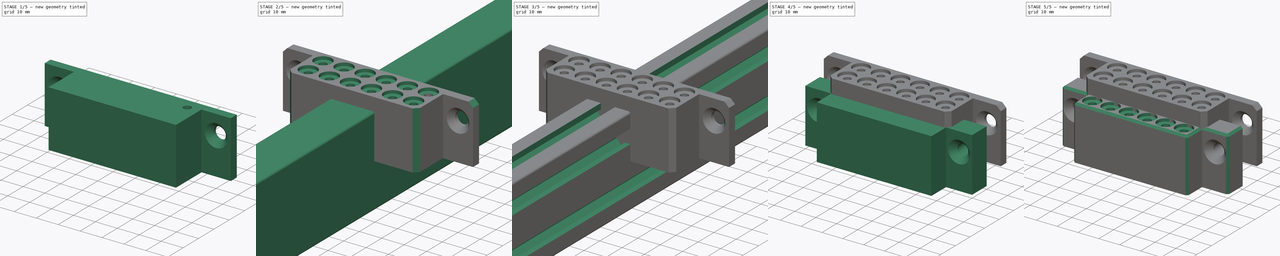
[diagram: build sequence overview — one tinted view per stage of 5, left to right]
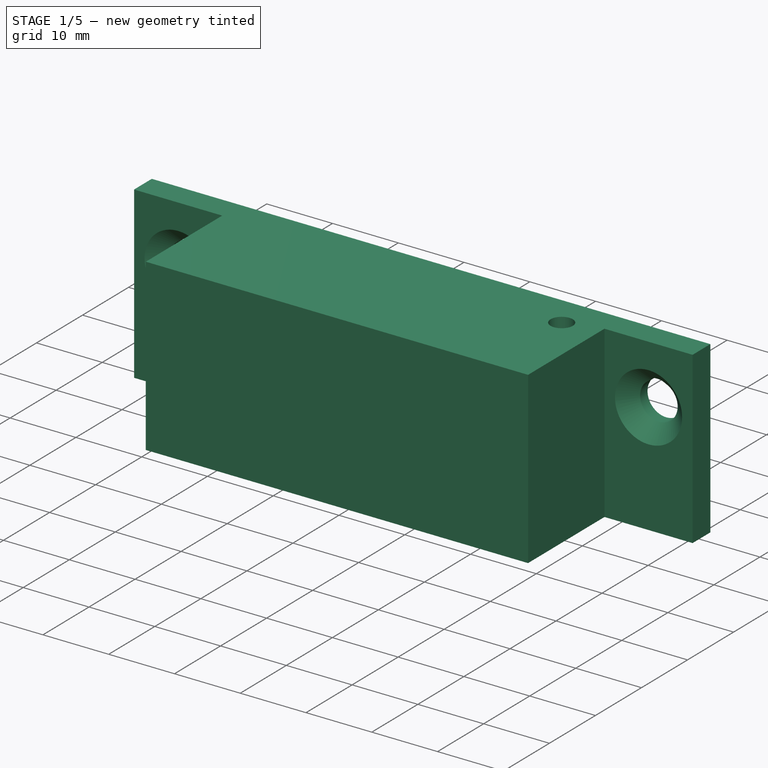
[diagram: stage 1 of 5 — iso view after this stage's code; geometry added in this stage tinted green]
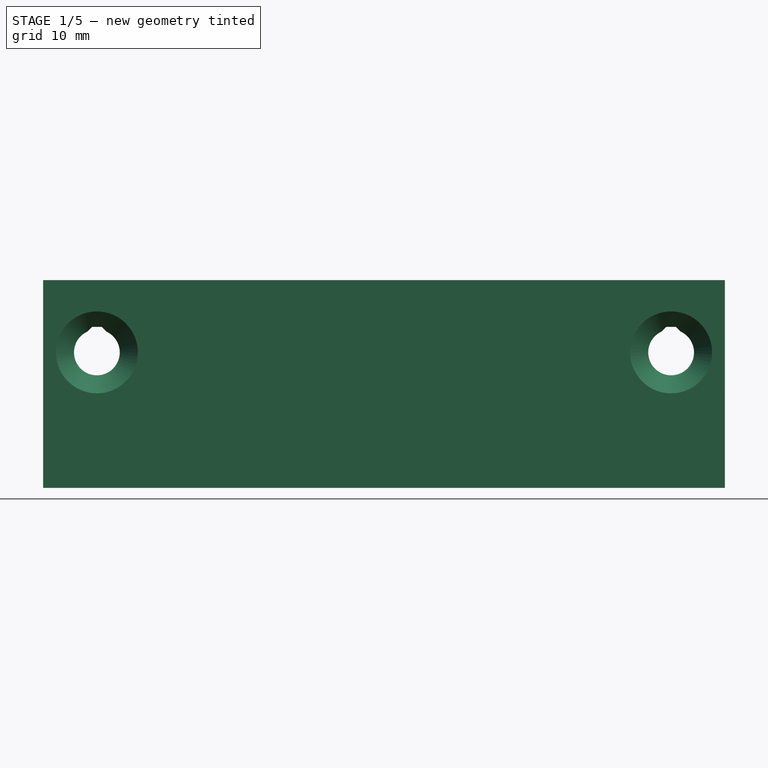
[diagram: stage 1 of 5 — front view after this stage's code; geometry added in this stage tinted green]
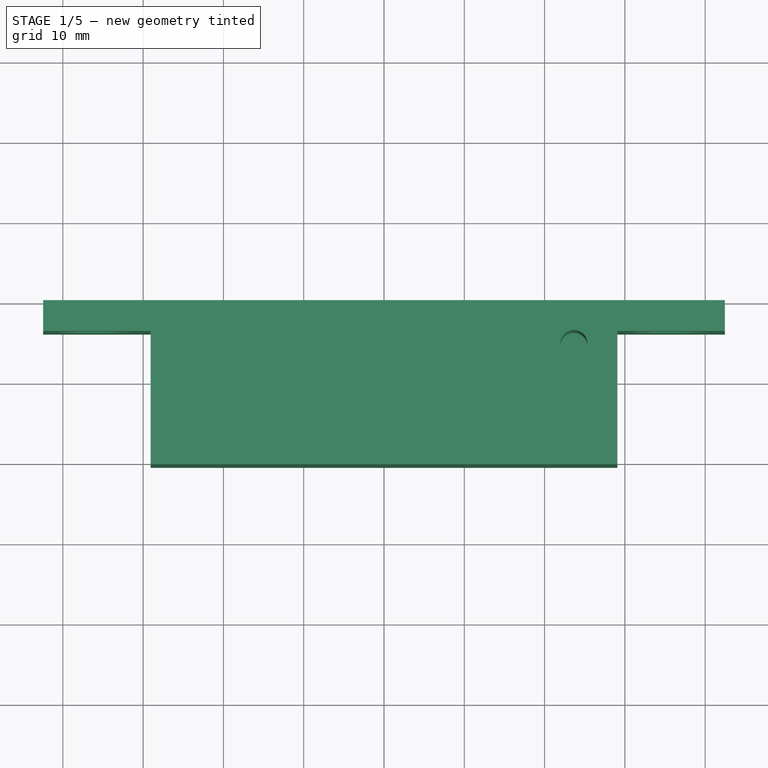
[diagram: stage 1 of 5 — top view after this stage's code; geometry added in this stage tinted green]
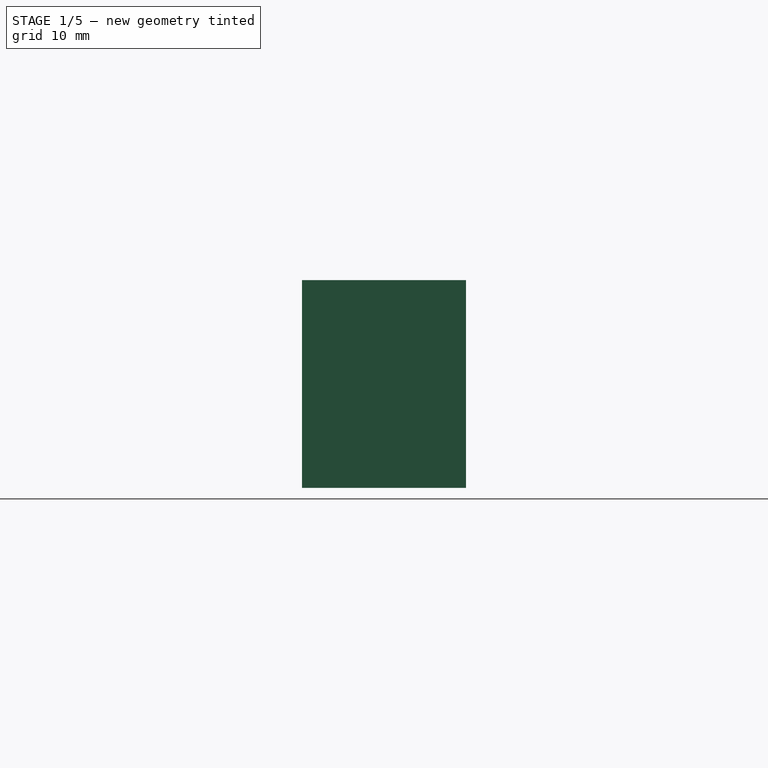
[diagram: stage 1 of 5 — right view after this stage's code; geometry added in this stage tinted green]
FCSTD DOCUMENT  (FreeCAD 1.0R39109 (Git))
Label: bit_holder
License: All rights reserved
LicenseURL: http://en.wikipedia.org/wiki/All_rights_reserved
objects: Sketcher::SketchObject×15, PartDesign::Pocket×8, PartDesign::Mirrored×6, PartDesign::LinearPattern×5, PartDesign::Pad×4, PartDesign::MultiTransform×3, PartDesign::Body×3, PartDesign::Hole×3, PartDesign::Chamfer×3, App::Part×1, PartDesign::SubShapeBinder×1, Spreadsheet::Sheet×1
note: 116 computed .brp shape members not serialized (recipe doc carries the construction recipe); baked Part::Feature solids carry a one-line shape summary decoded from their .brp

FEATURE [PartDesign::Body] Body  label="bit_holder"
  AllowCompound = false
  Group = -> [Binder,Sketch,Pad,Sketch014,Pad005,Sketch015,Hole,Mirrored,Sketch016,Hole001,MultiTransform001,LinearPattern,LinearPattern003,Chamfer,Sketch017,Pocket,Mirrored004]
  Origin = -> Origin012
  Tip = -> Mirrored004
FEATURE [Spreadsheet::Sheet] Spreadsheet  label="settings"
  cells = A1='After changing parameters refresh (CTRL + R) to update the model; A3='Print Tolerance; B3(tolerance)=0.2; C3='<- oversize/undersize dimensions by this amount, accounts for 3D print inacuracies; A4='Minimum Print Width; B4(min_width)=1.6; A5='Minimum Print Height; B5(min_height)=1.4; A7='Bit Shaft Diameter; B7(bit_diameter)=3.175; A8='Depth Setting Ring Diameter; B8(ring_diameter)=7.62; A9='Bit Depth; B9(bit_depth)=20; A11='Holder Number of Rows; B11(nrows)=6; A12='Holder Number of Columns; B12(ncols)=2; A14='M5 Clearance Hole Diameter; B14(bolt_clearance_hole)=5.5; A15='M5 Counter Sink Diameter; B15(counter_sink_diameter)=10; A16='M5 Blunted Point; B16='Width; C16='Height; B17(hhbp_width)=2.4; C17(hhbp_height)=0.6; A19='Calculated Parameters; A20='DO NOT MODIFY; A21='Mount Tab Width; B21(mount_width)==counter_sink_diameter + tolerance + min_width + min_width; A22='Hole Spacing; B22(hole_spacing)==ring_diameter + tolerance + min_width
FEATURE [Sketcher::SketchObject] Sketch018
  ArcFitTolerance = 1e-06
  AttachmentSupport = -> [XY_Plane013]
  FullyConstrained = true
  MakeInternals = false
  MapMode = 5
  expr: Constraints[20] = <<settings>>.ring_diameter + <<settings>>.tolerance
  expr: Constraints[31] = <<settings>>.min_width
  expr: Constraints[32] = <<settings>>.min_width
  expr: Constraints[33] = <<settings>>.hole_spacing * <<settings>>.nrows + <<settings>>.min_width
  expr: Constraints[34] = <<settings>>.hole_spacing * <<settings>>.ncols + <<settings>>.min_width
  expr: Constraints[35] = <<settings>>.mount_width
  expr: Constraints[46] = <<settings>>.counter_sink_diameter + <<settings>>.tolerance
  expr: Constraints[47] = <<settings>>.bolt_clearance_hole + <<settings>>.tolerance
  expr: Constraints[49] = <<settings>>.min_width
  sketch-geometry (19):
    g0: LineSegment StartX=-42.46 StartY=0 StartZ=0 EndX=-42.46 EndY=-3.85 EndZ=0
    g1: LineSegment StartX=-42.46 StartY=-3.85 StartZ=0 EndX=-29.06 EndY=-3.85 EndZ=0
    g2: LineSegment StartX=42.46 StartY=-3.85 StartZ=0 EndX=42.46 EndY=0 EndZ=0
    g3: LineSegment StartX=42.46 StartY=0 StartZ=0 EndX=-42.46 EndY=0 EndZ=0
    g4: LineSegment StartX=-29.06 StartY=-3.85 StartZ=0 EndX=-29.06 EndY=-20.44 EndZ=0
    g5: LineSegment StartX=-29.06 StartY=-20.44 StartZ=0 EndX=29.06 EndY=-20.44 EndZ=0
    g6: LineSegment StartX=29.06 StartY=-20.44 StartZ=0 EndX=29.06 EndY=-3.85 EndZ=0
    g7: LineSegment [constr] StartX=29.06 StartY=-3.85 StartZ=0 EndX=-29.06 EndY=-3.85 EndZ=0
    g8: LineSegment StartX=29.06 StartY=-3.85 StartZ=0 EndX=42.46 EndY=-3.85 EndZ=0
    g9: Circle [constr] CenterX=23.55 CenterY=-5.51 CenterZ=0 NormalX=0 NormalY=0 NormalZ=1 AngleXU=0 Radius=3.91
    g10: LineSegment [constr] StartX=23.55 StartY=-5.51 StartZ=0 EndX=23.55 EndY=0 EndZ=0
    g11: LineSegment [constr] StartX=23.55 StartY=-5.51 StartZ=0 EndX=29.06 EndY=-5.51 EndZ=0
    g12: GeomPoint [constr] X=23.55 Y=-1.6 Z=0
    g13: GeomPoint [constr] X=27.46 Y=-5.51 Z=0
    g14: LineSegment [constr] StartX=42.46 StartY=-3.85 StartZ=0 EndX=52.66 EndY=-3.85 EndZ=0
    g15: LineSegment [constr] StartX=52.66 StartY=-3.85 StartZ=0 EndX=50.41 EndY=-1.6 EndZ=0
    g16: LineSegment [constr] StartX=50.41 StartY=-1.6 StartZ=0 EndX=44.71 EndY=-1.6 EndZ=0
    g17: LineSegment [constr] StartX=42.46 StartY=-3.85 StartZ=0 EndX=44.71 EndY=-1.6 EndZ=0
    g18: LineSegment [constr] StartX=47.56 StartY=-3.85 StartZ=0 EndX=47.56 EndY=-1.6 EndZ=0
  constraints (50):
    c: Coincident(g0,g1)
    c: Coincident(g8,g2)
    c: Coincident(g2,g3)
    c: Coincident(g3,g0)
    c: Vertical(g0)
    c: Vertical(g2)
    c: Horizontal(g1)
    c: PointOnObject(g0,g-1)
    c: Coincident(g4,g5)
    c: Coincident(g5,g6)
    c: Coincident(g6,g7)
    c: Coincident(g7,g4)
    c: Vertical(g4)
    c: Vertical(g6)
    c: Horizontal(g7)
    c: Coincident(g1,g4)
    c: Coincident(g6,g8)
    c: Horizontal(g8)
    c: Symmetric(g0,g2,g-2)
    c: Symmetric(g4,g5,g-2)
    c: Diameter(g9) = 7.82
    c: Coincident(g10,g9)
    c: PointOnObject(g10,g3)
    c: Vertical(g10)
    c: Coincident(g11,g9)
    c: Horizontal(g11)
    c: PointOnObject(g11,g6)
    c: PointOnObject(g12,g9)
    c: PointOnObject(g13,g9)
    c: PointOnObject(g12,g10)
    c: PointOnObject(g13,g11)
    c: Distance(g12,g10) = 1.6
    c: Distance(g13,g11) = 1.6
    c: DistanceX(g5,g5) = 58.12
    c: DistanceY(g4,g0) = 20.44
    c: DistanceX(g8,g8) = 13.4
    c: Coincident(g14,g2)
    c: Horizontal(g14)
    c: Coincident(g15,g14)
    c: Coincident(g16,g15)
    c: Horizontal(g16)
    c: Coincident(g17,g2)
    c: Coincident(g17,g16)
    c: Symmetric(g14,g14,g18)
    c: Symmetric(g16,g16,g18)
    c: Vertical(g18)
    c: DistanceX(g14,g14) = 10.2
    c: DistanceX(g16,g16) = 5.7
    c: Perpendicular(g15,g17)
    c: DistanceY(g15,g2) = 1.6
FEATURE [PartDesign::Pad] Pad006
  Direction = (0,0,1)
  Length = 25.87
  Length2 = 10
  Profile = -> Sketch018
  ReferenceAxis = -> Sketch018 [N_Axis]
  Refine = true
  Suppressed = false
  Type = 0
  expr: Length = 25.87 mm
FEATURE [Sketcher::SketchObject] Sketch019
  ArcFitTolerance = 1e-06
  AttachmentSupport = -> [Pad006]
  ExternalGeometry = -> [Pad006]
  FullyConstrained = true
  MakeInternals = false
  MapMode = 5
  Placement = pos=(0,-3.85,0) rot=(1,0,0;1.5708rad)
  sketch-geometry (2):
    g0: Circle CenterX=35.76 CenterY=16.87 CenterZ=0 NormalX=0 NormalY=0 NormalZ=1 AngleXU=0 Radius=2
    g1: LineSegment [constr] StartX=35.76 StartY=16.87 StartZ=0 EndX=35.76 EndY=25.87 EndZ=0
  constraints (5):
    c: DistanceY(g0,g-3) = 9
    c: Diameter(g0) = 4
    c: Coincident(g1,g0)
    c: Symmetric(g-3,g-3,g1)
    c: Vertical(g1)
FEATURE [PartDesign::Hole] Hole002
  BaseFeature = -> Pad006
  CustomThreadClearance = 0
  Depth = 179.182
  DepthType = 1
  Diameter = 5.7
  DrillForDepth = false
  DrillPoint = 1
  DrillPointAngle = 118
  HoleCutCountersinkAngle = 90
  HoleCutCustomValues = false
  HoleCutDepth = 0
  HoleCutDiameter = 10.2
  HoleCutType = 2
  ModelThread = false
  Profile = -> Sketch019
  Refine = true
  Suppressed = false
  Tapered = false
  TaperedAngle = 90
  ThreadClass = 0
  ThreadDepth = 179.182
  ThreadDepthType = 0
  ThreadDirection = 0
  ThreadFit = 0
  ThreadSize = 0
  ThreadType = 0
  Threaded = false
  UseCustomThreadClearance = false
  expr: Diameter = <<settings>>.bolt_clearance_hole + <<settings>>.tolerance
  expr: HoleCutDiameter = <<settings>>.counter_sink_diameter + <<settings>>.tolerance
FEATURE [Sketcher::SketchObject] Sketch020
  ArcFitTolerance = 1e-06
  AttachmentSupport = -> [Hole002]
  ExternalGeometry = -> [Hole002]
  FullyConstrained = true
  MakeInternals = false
  MapMode = 5
  Placement = pos=(0,0,0) rot=(0,0.707107,0.707107;3.14159rad)
  expr: Constraints[10] = <<settings>>.hhbp_width
  expr: Constraints[11] = <<settings>>.hhbp_height
  sketch-geometry (6):
    g0: LineSegment [constr] StartX=-34.56 StartY=19.4551 StartZ=0 EndX=-36.96 EndY=19.4551 EndZ=0
    g1: LineSegment StartX=-36.96 StartY=19.4551 StartZ=0 EndX=-36.36 EndY=20.0551 EndZ=0
    g2: LineSegment StartX=-36.36 StartY=20.0551 StartZ=0 EndX=-35.16 EndY=20.0551 EndZ=0
    g3: LineSegment StartX=-35.16 StartY=20.0551 StartZ=0 EndX=-34.56 EndY=19.4551 EndZ=0
    g4: ArcOfCircle CenterX=-35.76 CenterY=16.87 CenterZ=0 NormalX=0 NormalY=0 NormalZ=1 AngleXU=0 Radius=2.85 StartAngle=2.0054 EndAngle=7.41938
    g5: LineSegment [constr] StartX=-35.76 StartY=16.87 StartZ=0 EndX=-35.76 EndY=20.0551 EndZ=0
  constraints (16):
    c: PointOnObject(g0,g-3)
    c: Horizontal(g0)
    c: Coincident(g0,g1)
    c: Coincident(g1,g2)
    c: Horizontal(g2)
    c: Coincident(g2,g3)
    c: Coincident(g3,g0)
    c: Coincident(g4,g-3)
    c: Coincident(g4,g0)
    c: Coincident(g4,g0)
    c: DistanceX(g0,g0) = 2.4
    c: DistanceY(g0,g2) = 0.6
    c: Angle(g3,g0) = 0.785398
    c: Coincident(g5,g4)
    c: Symmetric(g2,g2,g5)
    c: Vertical(g5)
FEATURE [PartDesign::Pocket] Pocket009
  BaseFeature = -> Hole002
  Direction = (0,-1,2e-16)
  Length = 5
  Length2 = 5
  Profile = -> Sketch020
  ReferenceAxis = -> Sketch020 [N_Axis]
  Refine = true
  Suppressed = false
  Type = 1
FEATURE [PartDesign::Mirrored] Mirrored005
  BaseFeature = -> Pocket009
  MirrorPlane = -> Sketch019 [V_Axis]
  Originals = -> [Hole002,Pocket009]
  Refine = true
  Suppressed = false
  TransformMode = 0
FEATURE [Sketcher::SketchObject] Sketch021
  ArcFitTolerance = 1e-06
  AttachmentSupport = -> [Mirrored005]
  ExternalGeometry = -> [Mirrored005]
  FullyConstrained = true
  MakeInternals = false
  MapMode = 5
  Placement = pos=(0,0,25.87) rot=(0,0,1;0rad)
  expr: Constraints[0] = <<settings>>.bit_diameter + <<settings>>.tolerance
  expr: Constraints[1] = <<settings>>.ring_diameter / 2 + <<settings>>.min_width
  expr: Constraints[2] = <<settings>>.ring_diameter / 2 + <<settings>>.min_width
  sketch-geometry (1):
    g0: Circle CenterX=23.65 CenterY=-5.41 CenterZ=0 NormalX=0 NormalY=0 NormalZ=1 AngleXU=0 Radius=1.6875
  constraints (3):
    c: Diameter(g0) = 3.375
    c: DistanceX(g0,g-3) = 5.41
    c: DistanceY(g0,g-1) = 5.41
FEATURE [PartDesign::Pocket] Pocket010
  BaseFeature = -> Mirrored005
  Direction = (0,0,-1)
  Length = 20
  Length2 = 5
  Offset = 20
  Profile = -> Sketch021
  ReferenceAxis = -> Sketch021 [N_Axis]
  Refine = true
  Suppressed = false
  Type = 0
  expr: Length = <<settings>>.bit_depth
  expr: Offset = <<settings>>.bit_depth
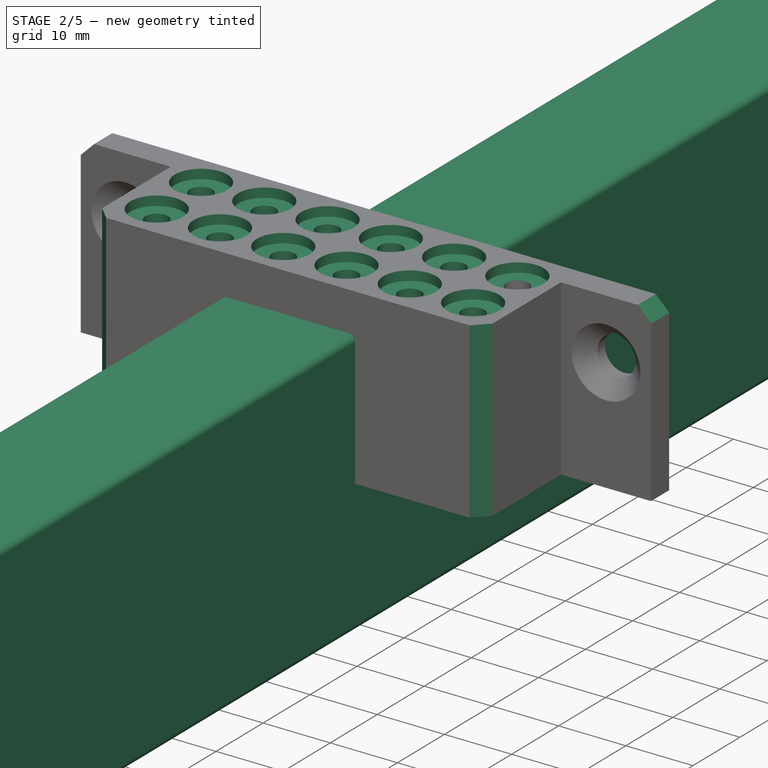
[diagram: stage 2 of 5 — iso view after this stage's code; geometry added in this stage tinted green]
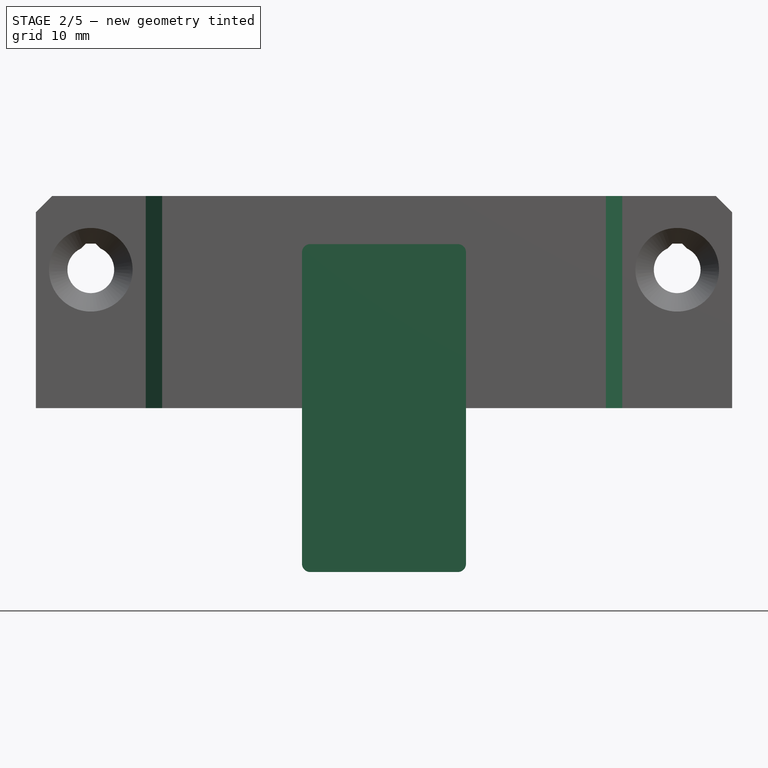
[diagram: stage 2 of 5 — front view after this stage's code; geometry added in this stage tinted green]
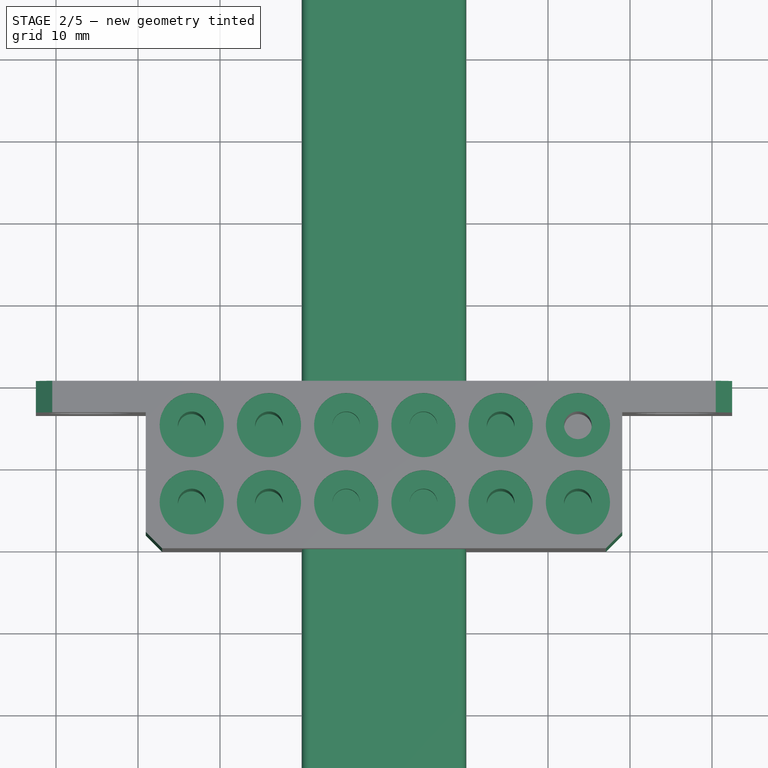
[diagram: stage 2 of 5 — top view after this stage's code; geometry added in this stage tinted green]
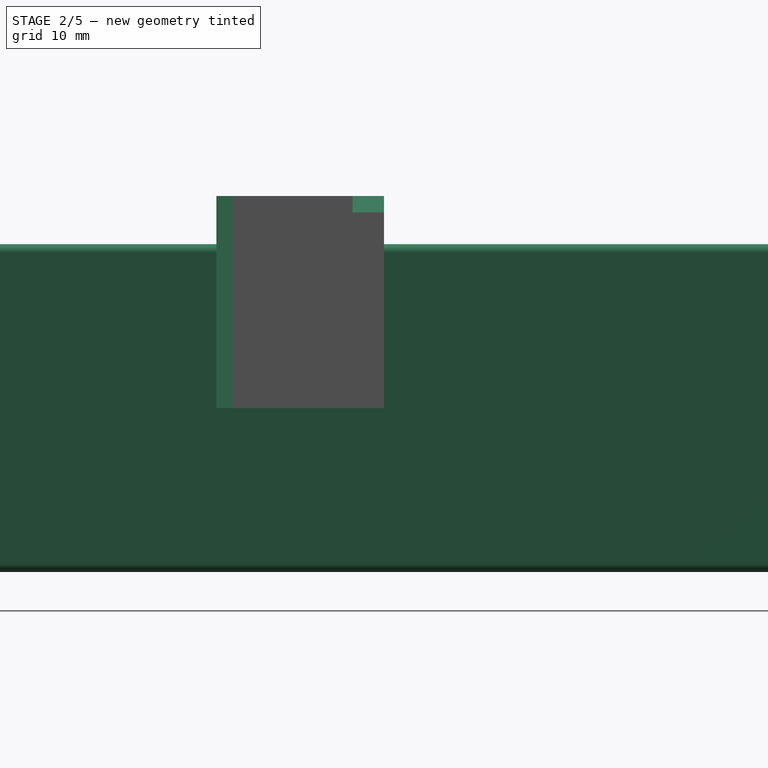
[diagram: stage 2 of 5 — right view after this stage's code; geometry added in this stage tinted green]
FEATURE [Sketcher::SketchObject] Sketch010
  ArcFitTolerance = 0
  AttachmentSupport = -> [XZ_Plane011]
  FullyConstrained = true
  MakeInternals = false
  MapMode = 5
  Placement = pos=(0,0,0) rot=(1,0,0;1.5708rad)
  sketch-geometry (8):
    g0: LineSegment StartX=-9 StartY=20 StartZ=0 EndX=9 EndY=20 EndZ=0
    g1: LineSegment StartX=10 StartY=19 StartZ=0 EndX=10 EndY=-19 EndZ=0
    g2: LineSegment StartX=9 StartY=-20 StartZ=0 EndX=-9 EndY=-20 EndZ=0
    g3: LineSegment StartX=-10 StartY=-19 StartZ=0 EndX=-10 EndY=19 EndZ=0
    g4: ArcOfCircle CenterX=9 CenterY=19 CenterZ=0 NormalX=0 NormalY=0 NormalZ=1 AngleXU=0 Radius=1 StartAngle=-9e-16 EndAngle=1.5708
    g5: ArcOfCircle CenterX=9 CenterY=-19 CenterZ=0 NormalX=0 NormalY=0 NormalZ=1 AngleXU=0 Radius=1 StartAngle=4.71239 EndAngle=6.28319
    g6: ArcOfCircle CenterX=-9 CenterY=-19 CenterZ=0 NormalX=0 NormalY=0 NormalZ=1 AngleXU=0 Radius=1 StartAngle=3.14159 EndAngle=4.71239
    g7: ArcOfCircle CenterX=-9 CenterY=19 CenterZ=0 NormalX=0 NormalY=0 NormalZ=1 AngleXU=0 Radius=1 StartAngle=1.5708 EndAngle=3.14159
  constraints (18):
    c: Horizontal(g0)
    c: Horizontal(g2)
    c: Vertical(g1)
    c: Vertical(g3)
    c: Tangent(g0,g4) = 1.5708
    c: Tangent(g1,g4) = 1.5708
    c: Tangent(g1,g5) = 1.5708
    c: Tangent(g2,g5) = 1.5708
    c: Tangent(g2,g6) = 1.5708
    c: Tangent(g3,g6) = 1.5708
    c: Tangent(g3,g7) = 1.5708
    c: Tangent(g0,g7) = 1.5708
    c: Equal(g5,g6)
    c: Radius(g4) = 1
    c: DistanceX(g3,g1) = 20
    c: DistanceY(g2,g0) = 40
    c: Symmetric(g4,g7,g-2)
    c: Symmetric(g4,g5,g-1)
FEATURE [PartDesign::Pad] Pad004
  AllowMultiFace = false
  Direction = (0,-1,2e-16)
  Length = 300
  Length2 = 100
  Midplane = true
  Placement = pos=(0,0,0) rot=(1,0,0;1.5708rad)
  Profile = -> Sketch010
  Refine = true
  Suppressed = false
  Type = 0
FEATURE [Sketcher::SketchObject] Sketch022
  ArcFitTolerance = 1e-06
  AttachmentSupport = -> [Pocket010]
  ExternalGeometry = -> [Pocket010]
  FullyConstrained = true
  MakeInternals = false
  MapMode = 5
  Placement = pos=(0,0,25.87) rot=(0,0,1;0rad)
  expr: Constraints[1] = <<settings>>.ring_diameter + <<settings>>.tolerance
  sketch-geometry (1):
    g0: Circle CenterX=23.65 CenterY=-5.41 CenterZ=0 NormalX=0 NormalY=0 NormalZ=1 AngleXU=0 Radius=3.91
  constraints (2):
    c: Coincident(g0,g-3)
    c: Diameter(g0) = 7.82
FEATURE [PartDesign::Pocket] Pocket011
  BaseFeature = -> Pocket010
  Direction = (0,0,-1)
  Length = 1.4
  Length2 = 5
  Profile = -> Sketch022
  ReferenceAxis = -> Sketch022 [N_Axis]
  Refine = true
  Suppressed = false
  Type = 0
  expr: Length = <<settings>>.min_height
FEATURE [PartDesign::LinearPattern] LinearPattern004
  Direction = -> Sketch022 [H_Axis]
  Length = 47.1
  Mode = 1
  Occurrences = 6
  Offset = 9.42
  Refine = true
  Reversed = true
  Suppressed = false
  TransformMode = 0
  expr: Occurrences = <<settings>>.nrows
  expr: Offset = <<settings>>.hole_spacing
FEATURE [PartDesign::LinearPattern] LinearPattern005
  Direction = -> Sketch022 [V_Axis]
  Length = 9.42
  Mode = 1
  Occurrences = 2
  Offset = 9.42
  Refine = true
  Reversed = true
  Suppressed = false
  TransformMode = 0
  expr: Occurrences = <<settings>>.ncols
  expr: Offset = <<settings>>.hole_spacing
FEATURE [PartDesign::MultiTransform] MultiTransform002
  BaseFeature = -> Pocket011
  Originals = -> [Pocket011,Pocket010]
  Refine = true
  Suppressed = false
  TransformMode = 0
  Transformations = -> [LinearPattern004,LinearPattern005]
FEATURE [PartDesign::Chamfer] Chamfer001
  Angle = 45
  Base = -> MultiTransform002 [Edge65,Edge63]
  BaseFeature = -> MultiTransform002
  ChamferType = 0
  FlipDirection = false
  Refine = true
  Size = 2
  Size2 = 1
  SupportTransform = false
  Suppressed = false
  UseAllEdges = false
FEATURE [PartDesign::Chamfer] Chamfer002
  Angle = 45
  Base = -> Chamfer001 [Edge22,Edge40]
  BaseFeature = -> Chamfer001
  ChamferType = 0
  FlipDirection = false
  Refine = true
  Size = 2
  Size2 = 1
  SupportTransform = false
  Suppressed = false
  UseAllEdges = false
FEATURE [PartDesign::Body] Body007  label="Body"
  AllowCompound = false
  Group = -> [Sketch018,Pad006,Sketch019,Hole002,Sketch020,Pocket009,Mirrored005,Sketch021,Pocket010,Sketch022,Pocket011,MultiTransform002,LinearPattern004,LinearPattern005,Chamfer001,Chamfer002]
  Origin = -> Origin013
  Tip = -> Chamfer002
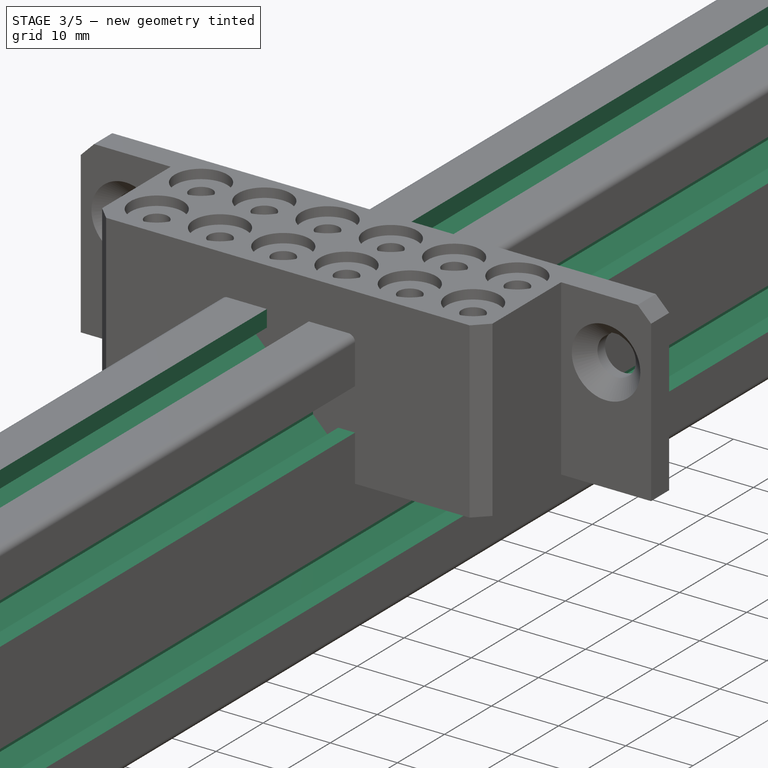
[diagram: stage 3 of 5 — iso view after this stage's code; geometry added in this stage tinted green]
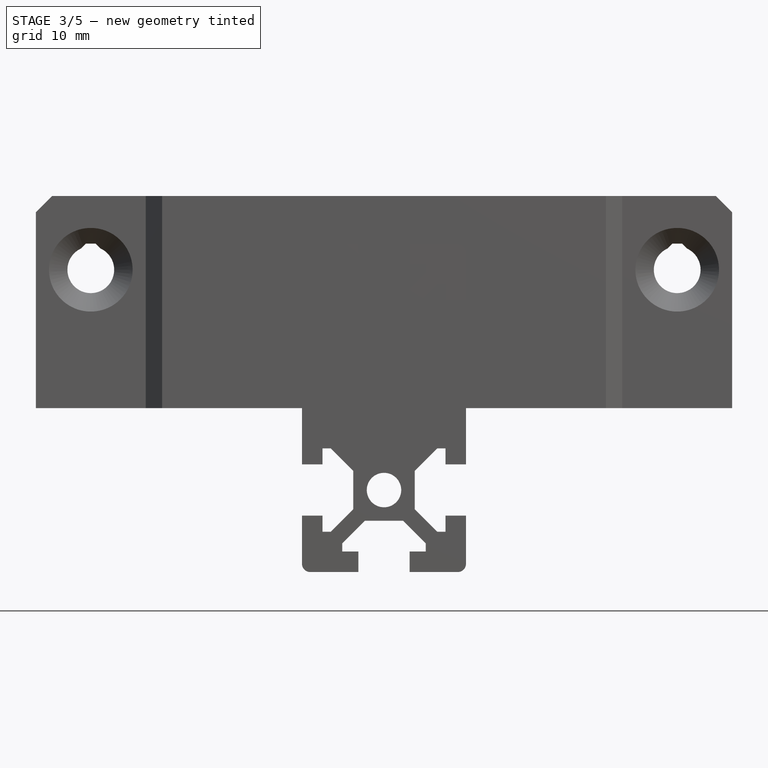
[diagram: stage 3 of 5 — front view after this stage's code; geometry added in this stage tinted green]
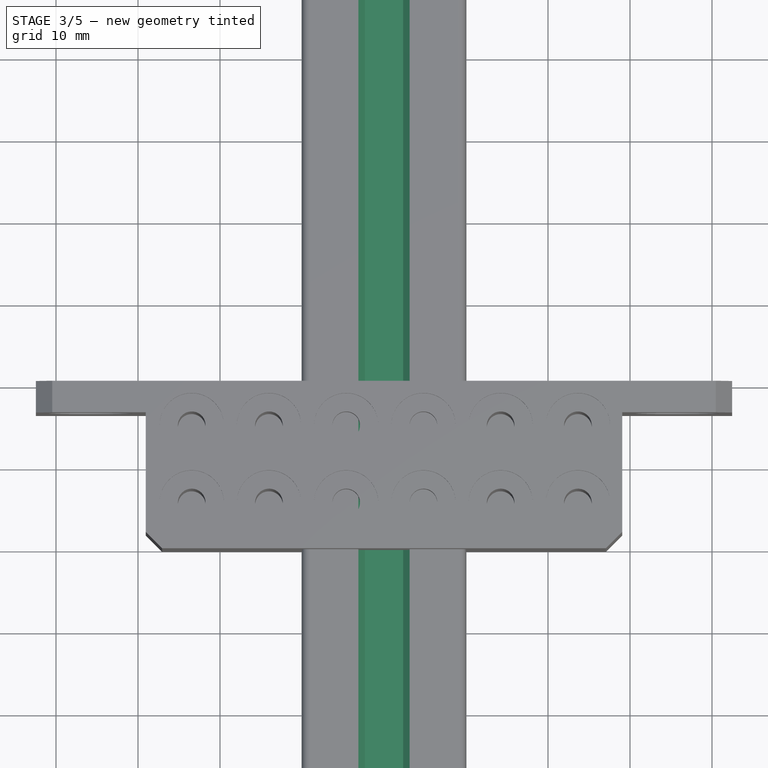
[diagram: stage 3 of 5 — top view after this stage's code; geometry added in this stage tinted green]
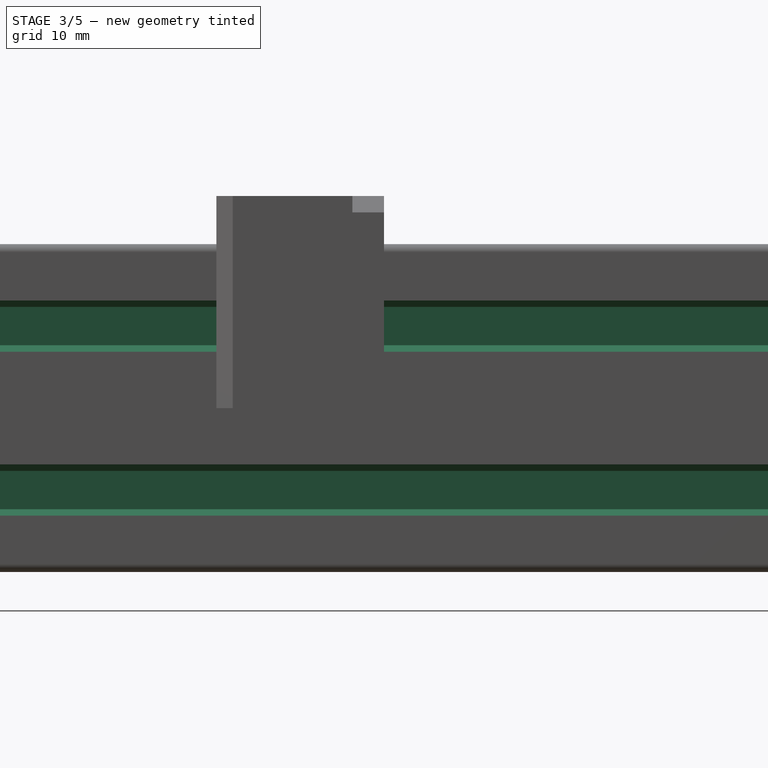
[diagram: stage 3 of 5 — right view after this stage's code; geometry added in this stage tinted green]
FEATURE [Sketcher::SketchObject] Sketch013
  ArcFitTolerance = 0
  AttachmentSupport = -> [Pad004]
  ExternalGeometry = -> [Pad004]
  FullyConstrained = true
  MakeInternals = false
  MapMode = 5
  Placement = pos=(0,-150,0) rot=(1,0,0;1.5708rad)
  sketch-geometry (15):
    g0: LineSegment StartX=-3.125 StartY=20 StartZ=0 EndX=3.125 EndY=20 EndZ=0
    g1: LineSegment StartX=3.125 StartY=20 StartZ=0 EndX=3.125 EndY=17.5 EndZ=0
    g2: LineSegment StartX=-3.125 StartY=17.5 StartZ=0 EndX=-3.125 EndY=20 EndZ=0
    g3: LineSegment StartX=5.08579 StartY=17.5 StartZ=0 EndX=5.08579 EndY=16.5 EndZ=0
    g4: LineSegment StartX=-5.08579 StartY=16.5 StartZ=0 EndX=-5.08579 EndY=17.5 EndZ=0
    g5: LineSegment StartX=-5.08579 StartY=16.5 StartZ=0 EndX=-2.33579 EndY=13.75 EndZ=0
    g6: LineSegment StartX=-2.33579 StartY=13.75 StartZ=0 EndX=2.33579 EndY=13.75 EndZ=0
    g7: LineSegment StartX=2.33579 StartY=13.75 StartZ=0 EndX=5.08579 EndY=16.5 EndZ=0
    g8: LineSegment StartX=3.125 StartY=17.5 StartZ=0 EndX=5.08579 EndY=17.5 EndZ=0
    g9: LineSegment StartX=-3.125 StartY=17.5 StartZ=0 EndX=-5.08579 EndY=17.5 EndZ=0
    g10: LineSegment [constr] StartX=-3.125 StartY=17.5 StartZ=0 EndX=3.125 EndY=17.5 EndZ=0
    g11: LineSegment [constr] StartX=5.08579 StartY=16.5 StartZ=0 EndX=-5.08579 EndY=16.5 EndZ=0
    g12: LineSegment [constr] StartX=-9 StartY=19 StartZ=0 EndX=0 EndY=10 EndZ=0
    g13: LineSegment [constr] StartX=0 StartY=10 StartZ=0 EndX=9 EndY=19 EndZ=0
    g14: LineSegment [constr] StartX=5.08579 StartY=16.5 StartZ=0 EndX=5.79289 EndY=15.7929 EndZ=0
  constraints (41):
    c: Coincident(g0,g1)
    c: Coincident(g2,g0)
    c: Horizontal(g0)
    c: Vertical(g1)
    c: Vertical(g2)
    c: PointOnObject(g0,g-3)
    c: Vertical(g3)
    c: Vertical(g4)
    c: Coincident(g6,g5)
    c: Horizontal(g6)
    c: Coincident(g7,g6)
    c: Coincident(g7,g3)
    c: Coincident(g8,g1)
    c: Coincident(g8,g3)
    c: Coincident(g9,g2)
    c: Coincident(g9,g4)
    c: Horizontal(g8)
    c: Horizontal(g9)
    c: Coincident(g10,g2)
    c: Coincident(g10,g1)
    c: Coincident(g11,g3)
    c: Coincident(g11,g4)
    c: Horizontal(g11)
    c: DistanceX(g0,g0) = 6.25
    c: DistanceY(g1,g1) = 2.5
    c: DistanceY(g4,g4) = 1
    c: Coincident(g5,g4)
    c: DistanceY(g6,g0) = 6.25
    c: Coincident(g12,g-5)
    c: PointOnObject(g12,g-2)
    c: Coincident(g13,g12)
    c: Coincident(g13,g-4)
    c: DistanceY(g12,g-4) = 10
    c: Parallel(g13,g7)
    c: Parallel(g12,g5)
    c: Coincident(g14,g3)
    c: PointOnObject(g14,g13)
    c: Perpendicular(g7,g14)
    c: Distance(g14) = 1
    c: Equal(g8,g9)
    c: Symmetric(g1,g2,g-2)
FEATURE [PartDesign::Pocket] Pocket007
  AllowMultiFace = false
  BaseFeature = -> Pad004
  Direction = (0,1,-2e-16)
  Length = 5
  Length2 = 100
  Placement = pos=(0,0,0) rot=(1,0,0;1.5708rad)
  Profile = -> Sketch013
  Refine = true
  Suppressed = false
  Type = 1
FEATURE [PartDesign::Mirrored] Mirrored001
  BaseFeature = -> Pocket007
  MirrorPlane = -> XY_Plane011
  Originals = -> [Pocket007]
  Placement = pos=(0,0,0) rot=(1,0,0;1.5708rad)
  Refine = true
  Suppressed = false
  TransformMode = 0
FEATURE [Sketcher::SketchObject] Sketch012
  ArcFitTolerance = 0
  AttachmentSupport = -> [Mirrored001]
  ExternalGeometry = -> [Mirrored001]
  FullyConstrained = true
  MakeInternals = false
  MapMode = 5
  Placement = pos=(0,-150,0) rot=(1,0,0;1.5708rad)
  sketch-geometry (16):
    g0: LineSegment [constr] StartX=9 StartY=19 StartZ=0 EndX=0 EndY=10 EndZ=0
    g1: LineSegment StartX=10 StartY=13.125 StartZ=0 EndX=7.5 EndY=13.125 EndZ=0
    g2: LineSegment StartX=7.5 StartY=6.875 StartZ=0 EndX=10 EndY=6.875 EndZ=0
    g3: LineSegment StartX=10 StartY=6.875 StartZ=0 EndX=10 EndY=13.125 EndZ=0
    g4: LineSegment StartX=7.5 StartY=15.0858 StartZ=0 EndX=6.5 EndY=15.0858 EndZ=0
    g5: LineSegment StartX=6.5 StartY=4.91421 StartZ=0 EndX=7.5 EndY=4.91421 EndZ=0
    g6: LineSegment StartX=7.5 StartY=13.125 StartZ=0 EndX=7.5 EndY=15.0858 EndZ=0
    g7: LineSegment StartX=7.5 StartY=6.875 StartZ=0 EndX=7.5 EndY=4.91421 EndZ=0
    g8: LineSegment StartX=6.5 StartY=15.0858 StartZ=0 EndX=3.75 EndY=12.3358 EndZ=0
    g9: LineSegment StartX=3.75 StartY=12.3358 StartZ=0 EndX=3.75 EndY=7.66421 EndZ=0
    g10: LineSegment StartX=3.75 StartY=7.66421 StartZ=0 EndX=6.5 EndY=4.91421 EndZ=0
    g11: LineSegment [constr] StartX=7.5 StartY=6.875 StartZ=0 EndX=7.5 EndY=13.125 EndZ=0
    g12: LineSegment [constr] StartX=10 StartY=10 StartZ=0 EndX=3.75 EndY=10 EndZ=0
    g13: LineSegment [constr] StartX=6.5 StartY=15.0858 StartZ=0 EndX=5.79289 EndY=15.7929 EndZ=0
    g14: LineSegment [constr] StartX=0 StartY=10 StartZ=0 EndX=10 EndY=4.423e-13 EndZ=0
    g15: LineSegment [constr] StartX=3.75 StartY=7.66421 StartZ=0 EndX=3.04289 EndY=6.95711 EndZ=0
  constraints (45):
    c: Coincident(g0,g-4)
    c: PointOnObject(g0,g-2)
    c: Parallel(g-5,g0)
    c: Coincident(g2,g3)
    c: Coincident(g3,g1)
    c: Horizontal(g1)
    c: Horizontal(g2)
    c: Vertical(g3)
    c: PointOnObject(g1,g-3)
    c: Horizontal(g4)
    c: Horizontal(g5)
    c: Coincident(g6,g1)
    c: Coincident(g6,g4)
    c: Coincident(g7,g2)
    c: Coincident(g7,g5)
    c: Coincident(g9,g8)
    c: Vertical(g9)
    c: Coincident(g10,g9)
    c: Coincident(g11,g2)
    c: Coincident(g11,g1)
    c: Vertical(g6)
    c: Vertical(g7)
    c: Symmetric(g1,g2,g12)
    c: Symmetric(g8,g9,g12)
    c: Parallel(g8,g0)
    c: DistanceY(g3,g3) = 6.25
    c: DistanceX(g9,g2) = 6.25
    c: DistanceX(g4,g4) = 1
    c: Symmetric(g2,g1,g12)
    c: Coincident(g8,g4)
    c: Coincident(g10,g5)
    c: Equal(g4,g5)
    c: Equal(g6,g7)
    c: DistanceX(g1,g1) = 2.5
    c: Coincident(g13,g4)
    c: PointOnObject(g13,g0)
    c: Perpendicular(g13,g8)
    c: Distance(g13) = 1
    c: Coincident(g14,g0)
    c: PointOnObject(g14,g-3)
    c: Perpendicular(g0,g14)
    c: Coincident(g15,g9)
    c: PointOnObject(g15,g14)
    c: Perpendicular(g10,g15)
    c: Distance(g15) = 1
FEATURE [PartDesign::LinearPattern] LinearPattern002
  Direction = -> Sketch012 [V_Axis]
  Length = 20
  Mode = 0
  Occurrences = 2
  Offset = 20
  Placement = pos=(0,0,0) rot=(1,0,0;1.5708rad)
  Refine = true
  Reversed = true
  Suppressed = false
  TransformMode = 0
FEATURE [PartDesign::Mirrored] Mirrored002
  MirrorPlane = -> Sketch012 [V_Axis]
  Placement = pos=(0,0,0) rot=(1,0,0;1.5708rad)
  Refine = true
  Suppressed = false
  TransformMode = 0
FEATURE [PartDesign::Pocket] Pocket005
  AllowMultiFace = false
  BaseFeature = -> Mirrored001
  Direction = (0,1,-2e-16)
  Length = 5
  Length2 = 100
  Placement = pos=(0,0,0) rot=(1,0,0;1.5708rad)
  Profile = -> Sketch012
  Refine = true
  Suppressed = false
  Type = 1
FEATURE [PartDesign::MultiTransform] MultiTransform
  BaseFeature = -> Pocket005
  Originals = -> [Pocket005]
  Placement = pos=(0,0,0) rot=(1,0,0;1.5708rad)
  Refine = true
  Suppressed = false
  TransformMode = 0
  Transformations = -> [LinearPattern002,Mirrored002]
FEATURE [Sketcher::SketchObject] Sketch009
  ArcFitTolerance = 0
  AttachmentSupport = -> [MultiTransform]
  ExternalGeometry = -> [MultiTransform]
  FullyConstrained = true
  MakeInternals = false
  MapMode = 5
  Placement = pos=(0,-150,0) rot=(1,0,0;1.5708rad)
  sketch-geometry (3):
    g0: LineSegment [constr] StartX=-9 StartY=19 StartZ=0 EndX=0 EndY=10 EndZ=0
    g1: LineSegment [constr] StartX=0 StartY=10 StartZ=0 EndX=9 EndY=19 EndZ=0
    g2: Circle CenterX=0 CenterY=10 CenterZ=0 NormalX=0 NormalY=0 NormalZ=1 AngleXU=0 Radius=2.1
  constraints (7):
    c: Coincident(g0,g-4)
    c: Coincident(g1,g0)
    c: Coincident(g1,g-3)
    c: PointOnObject(g0,g-2)
    c: Perpendicular(g0,g1)
    c: Coincident(g2,g0)
    c: Diameter(g2) = 4.2
FEATURE [PartDesign::Pocket] Pocket006
  AllowMultiFace = false
  BaseFeature = -> MultiTransform
  Direction = (0,1,-2e-16)
  Length = 5
  Length2 = 100
  Placement = pos=(0,0,0) rot=(1,0,0;1.5708rad)
  Profile = -> Sketch009
  Refine = true
  Suppressed = false
  Type = 1
FEATURE [PartDesign::Mirrored] Mirrored003
  BaseFeature = -> Pocket006
  MirrorPlane = -> Sketch009 [H_Axis]
  Originals = -> [Pocket006]
  Placement = pos=(0,0,0) rot=(1,0,0;1.5708rad)
  Refine = true
  Suppressed = false
  TransformMode = 0
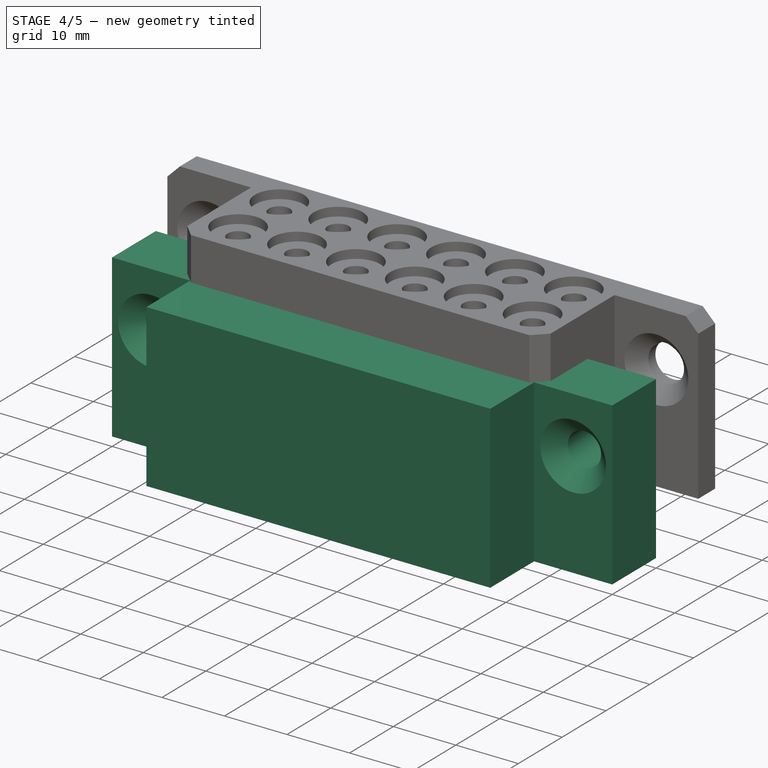
[diagram: stage 4 of 5 — iso view after this stage's code; geometry added in this stage tinted green]
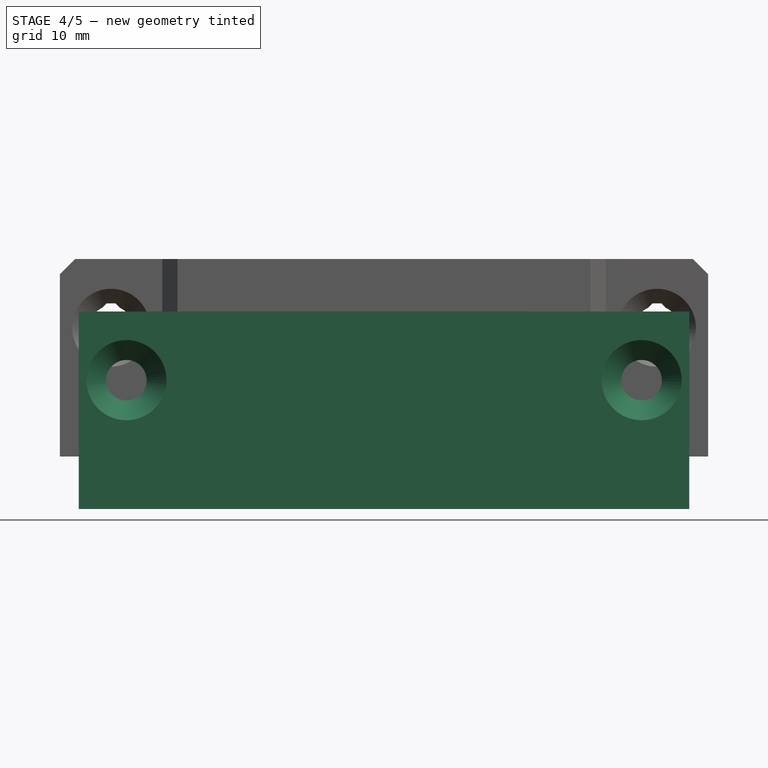
[diagram: stage 4 of 5 — front view after this stage's code; geometry added in this stage tinted green]
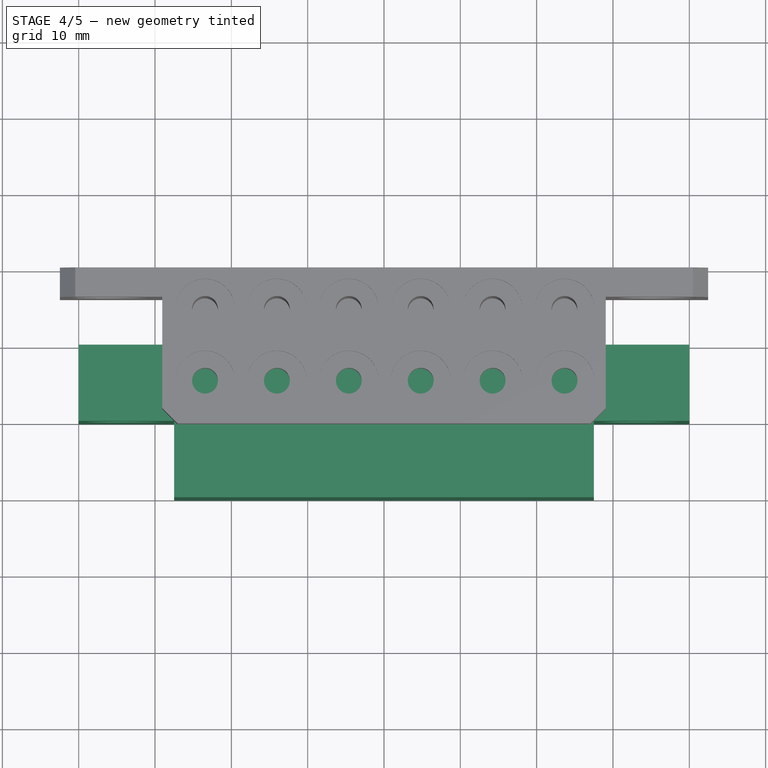
[diagram: stage 4 of 5 — top view after this stage's code; geometry added in this stage tinted green]
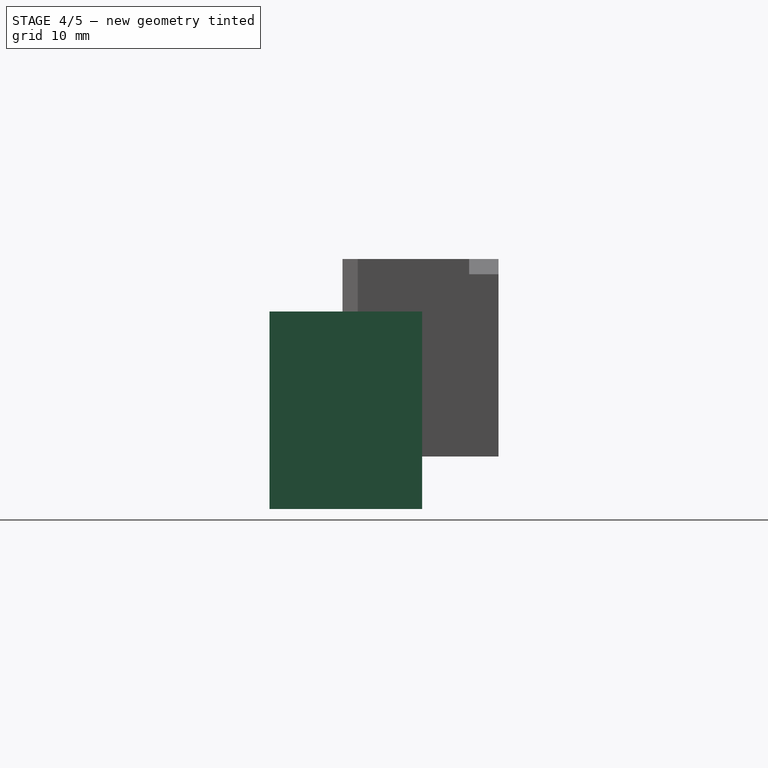
[diagram: stage 4 of 5 — right view after this stage's code; geometry added in this stage tinted green]
FEATURE [Sketcher::SketchObject] Sketch011
  ArcFitTolerance = 0
  AttachmentSupport = -> [Mirrored003]
  ExternalGeometry = -> [Mirrored003]
  FullyConstrained = true
  MakeInternals = false
  MapMode = 5
  Placement = pos=(0,-150,0) rot=(1,0,0;1.5708rad)
  sketch-geometry (11):
    g0: LineSegment StartX=-2.33579 StartY=6.25 StartZ=0 EndX=-6.25 EndY=2.33579 EndZ=0
    g1: LineSegment StartX=-6.25 StartY=2.33579 StartZ=0 EndX=-6.25 EndY=-2.33579 EndZ=0
    g2: LineSegment StartX=-6.25 StartY=-2.33579 StartZ=0 EndX=-2.33579 EndY=-6.25 EndZ=0
    g3: LineSegment StartX=-2.33579 StartY=-6.25 StartZ=0 EndX=2.33579 EndY=-6.25 EndZ=0
    g4: LineSegment StartX=2.33579 StartY=-6.25 StartZ=0 EndX=6.25 EndY=-2.33579 EndZ=0
    g5: LineSegment StartX=6.25 StartY=-2.33579 StartZ=0 EndX=6.25 EndY=2.33579 EndZ=0
    g6: LineSegment StartX=6.25 StartY=2.33579 StartZ=0 EndX=2.33579 EndY=6.25 EndZ=0
    g7: LineSegment StartX=2.33579 StartY=6.25 StartZ=0 EndX=-2.33579 EndY=6.25 EndZ=0
    g8: LineSegment [constr] StartX=-2.33579 StartY=6.25 StartZ=0 EndX=2.33579 EndY=-6.25 EndZ=0
    g9: LineSegment [constr] StartX=-2.33579 StartY=-6.25 StartZ=0 EndX=2.33579 EndY=6.25 EndZ=0
    g10: LineSegment [constr] StartX=-2.33579 StartY=6.25 StartZ=0 EndX=-3.75 EndY=7.66421 EndZ=0
  constraints (31):
    c: Coincident(g1,g0)
    c: Vertical(g1)
    c: Coincident(g2,g1)
    c: Coincident(g3,g2)
    c: Horizontal(g3)
    c: Coincident(g4,g3)
    c: Coincident(g5,g4)
    c: Coincident(g6,g5)
    c: Coincident(g7,g6)
    c: Coincident(g7,g0)
    c: Horizontal(g7)
    c: Vertical(g5)
    c: Parallel(g6,g-4)
    c: Parallel(g0,g-3)
    c: Parallel(g4,g-5)
    c: Equal(g-7,g7)
    c: Equal(g7,g5)
    c: Equal(g5,g3)
    c: Equal(g3,g1)
    c: Equal(g0,g6)
    c: Equal(g6,g4)
    c: Coincident(g8,g0)
    c: Coincident(g8,g3)
    c: Coincident(g9,g2)
    c: Coincident(g9,g6)
    c: PointOnObject(g-1,g9)
    c: PointOnObject(g-1,g8)
    c: Coincident(g10,g0)
    c: PointOnObject(g10,g-3)
    c: Perpendicular(g10,g0)
    c: Distance(g10) = 2
FEATURE [PartDesign::Pocket] Pocket008
  AllowMultiFace = false
  BaseFeature = -> Mirrored003
  Direction = (0,1,-2e-16)
  Length = 5
  Length2 = 100
  Placement = pos=(0,0,0) rot=(1,0,0;1.5708rad)
  Profile = -> Sketch011
  Refine = true
  Suppressed = false
  Type = 1
FEATURE [PartDesign::Body] Body006  label="2040"
  AllowCompound = false
  Group = -> [Sketch010,Pad004,Sketch013,Pocket007,Mirrored001,Sketch012,Pocket005,MultiTransform,LinearPattern002,Mirrored002,Sketch009,Pocket006,Mirrored003,Sketch011,Pocket008]
  Origin = -> Origin011
  Placement = pos=(0,0,0) rot=(0,0,1;1.5708rad)
  Tip = -> Pocket008
FEATURE [App::Part] Part  label="aluminum"
  Group = -> [Body006]
  Origin = -> Origin
FEATURE [PartDesign::SubShapeBinder] Binder
  BindCopyOnChange = 0
  BindMode = 0
  ClaimChildren = false
  Context = -> Body [Binder.]
  Fuse = false
  MakeFace = true
  OffsetFill = false
  OffsetIntersection = false
  OffsetJoinType = 0
  OffsetOpenResult = false
  PartialLoad = false
  Refine = true
  Relative = true
  Support = -> [Part[Body006.Pocket008.Face6,Body006.Pocket008.Face25,Body006.Pocket008.Face45]]
  _Version = 2
FEATURE [Sketcher::SketchObject] Sketch
  ArcFitTolerance = 1e-06
  AttachmentSupport = -> [Binder]
  ExternalGeometry = -> [Binder]
  FullyConstrained = true
  MakeInternals = false
  MapMode = 5
  Placement = pos=(0,-10,0) rot=(1,0,0;1.5708rad)
  sketch-geometry (4):
    g0: LineSegment StartX=-40 StartY=19 StartZ=0 EndX=-40 EndY=-6.875 EndZ=0
    g1: LineSegment StartX=-40 StartY=-6.875 StartZ=0 EndX=40 EndY=-6.875 EndZ=0
    g2: LineSegment StartX=40 StartY=-6.875 StartZ=0 EndX=40 EndY=19 EndZ=0
    g3: LineSegment StartX=40 StartY=19 StartZ=0 EndX=-40 EndY=19 EndZ=0
  constraints (11):
    c: Coincident(g0,g1)
    c: Coincident(g1,g2)
    c: Coincident(g2,g3)
    c: Coincident(g3,g0)
    c: Vertical(g0)
    c: Vertical(g2)
    c: Horizontal(g1)
    c: PointOnObject(g0,g-3)
    c: PointOnObject(g1,g-4)
    c: DistanceX(g3,g3) = 80
    c: Symmetric(g0,g2,g-2)
FEATURE [PartDesign::Pad] Pad
  Direction = (0,-1,2e-16)
  Length = 10
  Length2 = 10
  Profile = -> Sketch
  ReferenceAxis = -> Sketch [N_Axis]
  Refine = true
  Suppressed = false
  Type = 0
FEATURE [Sketcher::SketchObject] Sketch014
  ArcFitTolerance = 1e-06
  AttachmentSupport = -> [Pad]
  ExternalGeometry = -> [Pad]
  FullyConstrained = true
  MakeInternals = false
  MapMode = 5
  Placement = pos=(0,-20,0) rot=(1,0,0;1.5708rad)
  sketch-geometry (4):
    g0: LineSegment StartX=-27.5 StartY=19 StartZ=0 EndX=-27.5 EndY=-6.875 EndZ=0
    g1: LineSegment StartX=-27.5 StartY=-6.875 StartZ=0 EndX=27.5 EndY=-6.875 EndZ=0
    g2: LineSegment StartX=27.5 StartY=-6.875 StartZ=0 EndX=27.5 EndY=19 EndZ=0
    g3: LineSegment StartX=27.5 StartY=19 StartZ=0 EndX=-27.5 EndY=19 EndZ=0
  constraints (12):
    c: Coincident(g0,g1)
    c: Coincident(g1,g2)
    c: Coincident(g2,g3)
    c: Coincident(g3,g0)
    c: Vertical(g0)
    c: Vertical(g2)
    c: Horizontal(g1)
    c: PointOnObject(g0,g-3)
    c: PointOnObject(g1,g-4)
    c: Symmetric(g0,g2,g-2)
    c: DistanceX(g2,g-3) = 12.5
    c: DistanceX(g3,g3) = 55  'pad_width'
FEATURE [PartDesign::Pad] Pad005
  BaseFeature = -> Pad
  Direction = (0,-1,2e-16)
  Length = 10
  Length2 = 10
  Profile = -> Sketch014
  ReferenceAxis = -> Sketch014 [N_Axis]
  Refine = true
  Suppressed = false
  Type = 0
FEATURE [Sketcher::SketchObject] Sketch015
  ArcFitTolerance = 1e-06
  AttachmentSupport = -> [Pad005]
  ExternalGeometry = -> [Binder,Pad005]
  FullyConstrained = true
  MakeInternals = false
  MapMode = 5
  Placement = pos=(0,-20,0) rot=(1,0,0;1.5708rad)
  sketch-geometry (3):
    g0: Circle CenterX=33.75 CenterY=10 CenterZ=0 NormalX=0 NormalY=0 NormalZ=1 AngleXU=0 Radius=5
    g1: LineSegment [constr] StartX=33.75 StartY=13.125 StartZ=0 EndX=33.75 EndY=6.875 EndZ=0
    g2: LineSegment [constr] StartX=27.5 StartY=10 StartZ=0 EndX=40 EndY=10 EndZ=0
  constraints (9):
    c: Diameter(g0) = 10
    c: PointOnObject(g1,g-3)
    c: PointOnObject(g1,g-4)
    c: Vertical(g1)
    c: Symmetric(g1,g1,g0)
    c: PointOnObject(g2,g-5)
    c: PointOnObject(g2,g-6)
    c: Horizontal(g2)
    c: Symmetric(g2,g2,g0)
FEATURE [PartDesign::Hole] Hole
  BaseFeature = -> Pad005
  CustomThreadClearance = 0
  Depth = 174.581
  DepthType = 1
  Diameter = 5.3
  DrillForDepth = false
  DrillPoint = 1
  DrillPointAngle = 118
  HoleCutCountersinkAngle = 90
  HoleCutCustomValues = false
  HoleCutDepth = 0
  HoleCutDiameter = 10.5
  HoleCutType = 2
  ModelThread = false
  Profile = -> Sketch015
  Refine = true
  Suppressed = false
  Tapered = false
  TaperedAngle = 90
  ThreadClass = 0
  ThreadDepth = 174.581
  ThreadDepthType = 0
  ThreadDirection = 0
  ThreadFit = 0
  ThreadSize = 0
  ThreadType = 0
  Threaded = false
  UseCustomThreadClearance = false
FEATURE [PartDesign::Mirrored] Mirrored
  BaseFeature = -> Hole
  MirrorPlane = -> Sketch015 [V_Axis]
  Originals = -> [Hole]
  Refine = true
  Suppressed = false
  TransformMode = 0
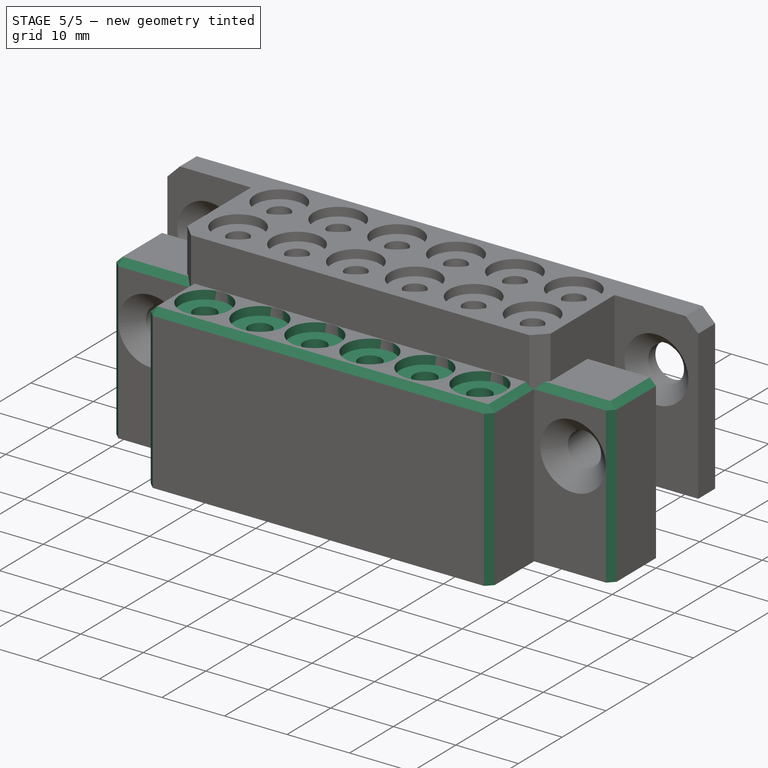
[diagram: stage 5 of 5 — iso view after this stage's code; geometry added in this stage tinted green]
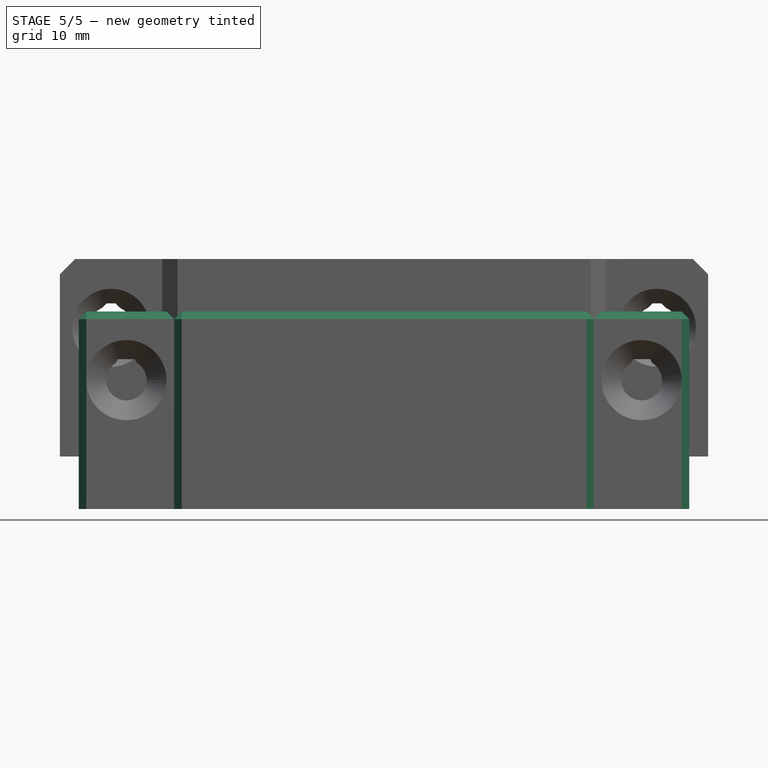
[diagram: stage 5 of 5 — front view after this stage's code; geometry added in this stage tinted green]
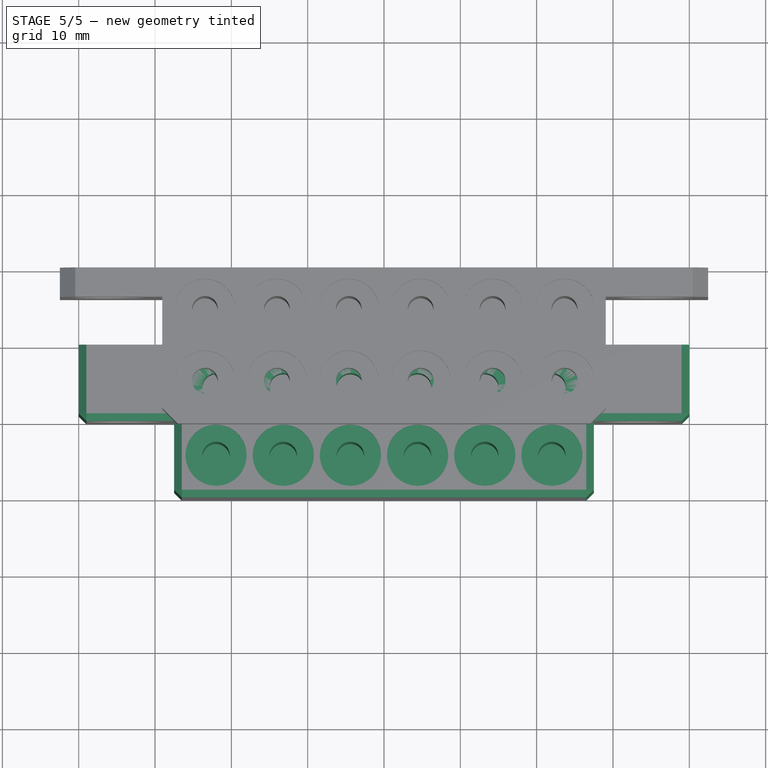
[diagram: stage 5 of 5 — top view after this stage's code; geometry added in this stage tinted green]
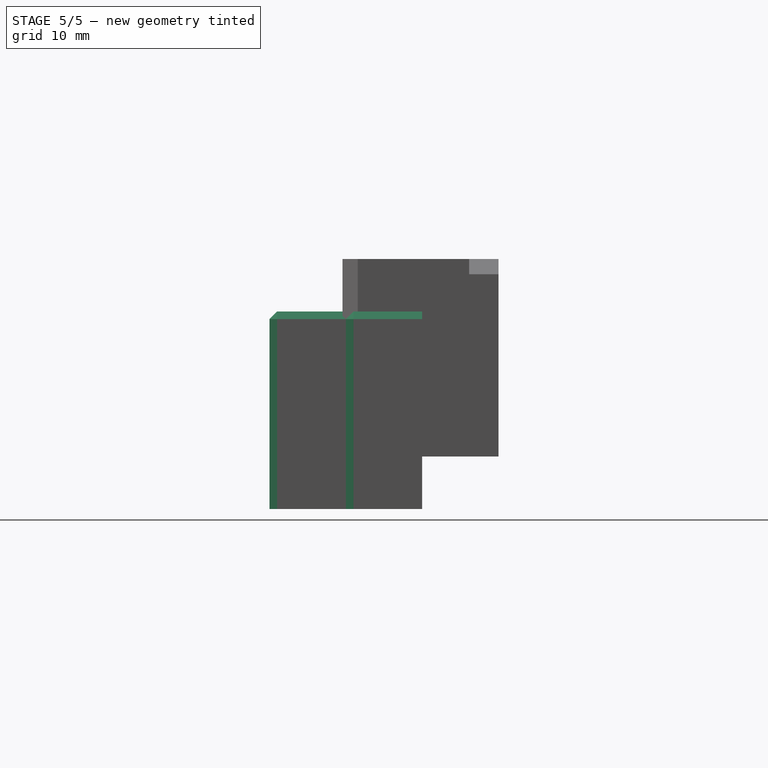
[diagram: stage 5 of 5 — right view after this stage's code; geometry added in this stage tinted green]
FEATURE [Sketcher::SketchObject] Sketch016
  ArcFitTolerance = 1e-06
  AttachmentSupport = -> [Mirrored]
  ExternalGeometry = -> [Mirrored,Binder]
  FullyConstrained = true
  MakeInternals = false
  MapMode = 5
  Placement = pos=(0,6.8e-15,19) rot=(0,0,1;0rad)
  expr: Constraints[11] = .Constraints.hole_spacing
  sketch-geometry (5):
    g0: Circle CenterX=22 CenterY=-15.5 CenterZ=0 NormalX=0 NormalY=0 NormalZ=1 AngleXU=0 Radius=4
    g1: LineSegment [constr] StartX=22 StartY=-15.5 StartZ=0 EndX=22 EndY=-10 EndZ=0
    g2: LineSegment [constr] StartX=22 StartY=-15.5 StartZ=0 EndX=27.5 EndY=-15.5 EndZ=0
    g3: GeomPoint [constr] X=22 Y=-11.5 Z=0
    g4: GeomPoint [constr] X=26 Y=-15.5 Z=0
  constraints (13):
    c: Diameter(g0) = 8  'hole_diameter'
    c: Coincident(g1,g0)
    c: Vertical(g1)
    c: Coincident(g2,g0)
    c: Horizontal(g2)
    c: PointOnObject(g2,g-3)
    c: PointOnObject(g3,g1)
    c: PointOnObject(g4,g0)
    c: PointOnObject(g3,g0)
    c: PointOnObject(g4,g2)
    c: Distance(g4,g2) = 1.5  'hole_spacing'
    c: Distance(g3,g1) = 1.5
    c: PointOnObject(g1,g-4)
FEATURE [PartDesign::Hole] Hole001
  BaseFeature = -> Mirrored
  CustomThreadClearance = 0
  Depth = 20
  DepthType = 0
  Diameter = 3.6
  DrillForDepth = false
  DrillPoint = 0
  DrillPointAngle = 118
  HoleCutCountersinkAngle = 90
  HoleCutCustomValues = false
  HoleCutDepth = 1.4
  HoleCutDiameter = 8
  HoleCutType = 1
  ModelThread = false
  Profile = -> Sketch016
  Refine = true
  Suppressed = false
  Tapered = false
  TaperedAngle = 90
  ThreadClass = 0
  ThreadDepth = 20
  ThreadDepthType = 0
  ThreadDirection = 0
  ThreadFit = 0
  ThreadSize = 0
  ThreadType = 0
  Threaded = false
  UseCustomThreadClearance = false
FEATURE [PartDesign::LinearPattern] LinearPattern
  Direction = -> Sketch016 [H_Axis]
  Length = 44
  Mode = 0
  Occurrences = 6
  Offset = 8.8
  Refine = true
  Reversed = true
  Suppressed = false
  TransformMode = 0
  expr: Length = Sketch014.Constraints.pad_width - 2 * Sketch016.Constraints.hole_spacing - Sketch016.Constraints.hole_diameter
FEATURE [PartDesign::LinearPattern] LinearPattern003
  Direction = -> Sketch016 [V_Axis]
  Length = 9
  Mode = 0
  Occurrences = 2
  Offset = 9
  Refine = true
  Reversed = true
  Suppressed = false
  TransformMode = 0
  expr: Length = Pad.Length + Pad005.Length - 2 * Sketch016.Constraints.hole_spacing - Sketch016.Constraints.hole_diameter
FEATURE [PartDesign::MultiTransform] MultiTransform001
  BaseFeature = -> Hole001
  Originals = -> [Hole001]
  Refine = true
  Suppressed = false
  TransformMode = 0
  Transformations = -> [LinearPattern,LinearPattern003]
FEATURE [PartDesign::Chamfer] Chamfer
  Angle = 45
  Base = -> MultiTransform001 [Edge39,Edge36,Edge4,Edge40,Edge1,Edge9,Edge11,Edge10,Edge8,Edge7,Edge5]
  BaseFeature = -> MultiTransform001
  ChamferType = 0
  FlipDirection = false
  Refine = true
  Size = 1
  Size2 = 1
  SupportTransform = false
  Suppressed = false
  UseAllEdges = false
FEATURE [Sketcher::SketchObject] Sketch017
  ArcFitTolerance = 1e-06
  AttachmentSupport = -> [Chamfer]
  ExternalGeometry = -> [Chamfer]
  FullyConstrained = true
  MakeInternals = false
  MapMode = 5
  Placement = pos=(0,-10,0) rot=(0,0.707107,0.707107;3.14159rad)
  sketch-geometry (5):
    g0: LineSegment StartX=32.35 StartY=12.25 StartZ=0 EndX=32.6387 EndY=12.75 EndZ=0
    g1: LineSegment StartX=32.6387 StartY=12.75 StartZ=0 EndX=34.8613 EndY=12.75 EndZ=0
    g2: LineSegment StartX=34.8613 StartY=12.75 StartZ=0 EndX=35.15 EndY=12.25 EndZ=0
    g3: LineSegment StartX=35.15 StartY=12.25 StartZ=0 EndX=32.35 EndY=12.25 EndZ=0
    g4: LineSegment [constr] StartX=33.75 StartY=10 StartZ=0 EndX=33.75 EndY=12.75 EndZ=0
  constraints (14):
    c: PointOnObject(g0,g-3)
    c: Coincident(g0,g1)
    c: Horizontal(g1)
    c: Coincident(g1,g2)
    c: PointOnObject(g2,g-3)
    c: Coincident(g2,g3)
    c: Coincident(g3,g0)
    c: Horizontal(g3)
    c: Coincident(g4,g-3)
    c: Vertical(g4)
    c: Symmetric(g0,g1,g4)
    c: DistanceX(g3,g3) = 2.8
    c: Angle(g2,g3) = 1.0472
    c: DistanceY(g2,g1) = 0.5
FEATURE [PartDesign::Pocket] Pocket
  BaseFeature = -> Chamfer
  Direction = (0,-1,2e-16)
  Length = 5
  Length2 = 5
  Profile = -> Sketch017
  ReferenceAxis = -> Sketch017 [N_Axis]
  Refine = true
  Suppressed = false
  Type = 1
FEATURE [PartDesign::Mirrored] Mirrored004
  BaseFeature = -> Pocket
  MirrorPlane = -> Sketch017 [V_Axis]
  Originals = -> [Pocket]
  Refine = true
  Suppressed = false
  TransformMode = 0
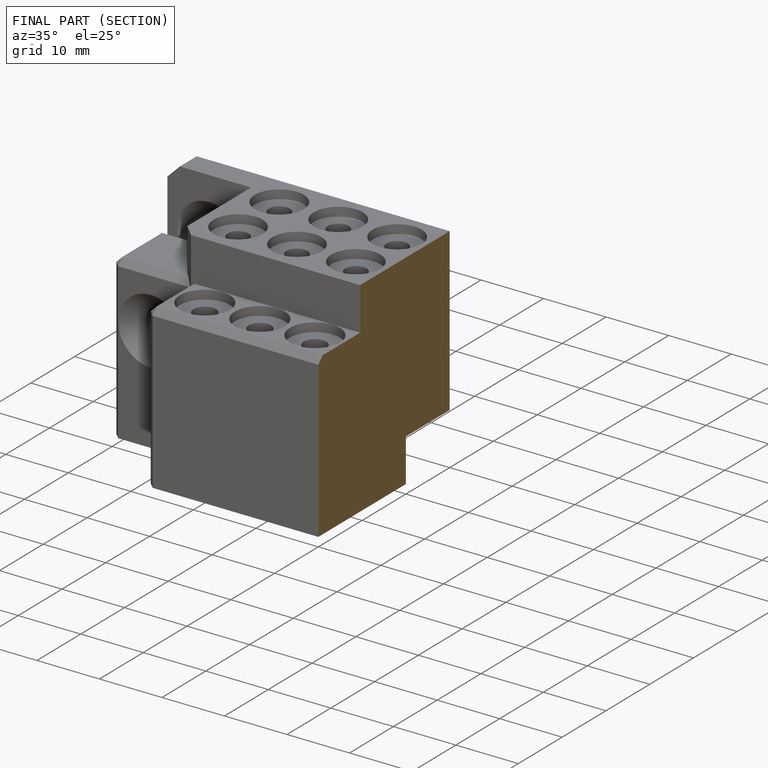
[diagram: finished part — half-section view (interior)]
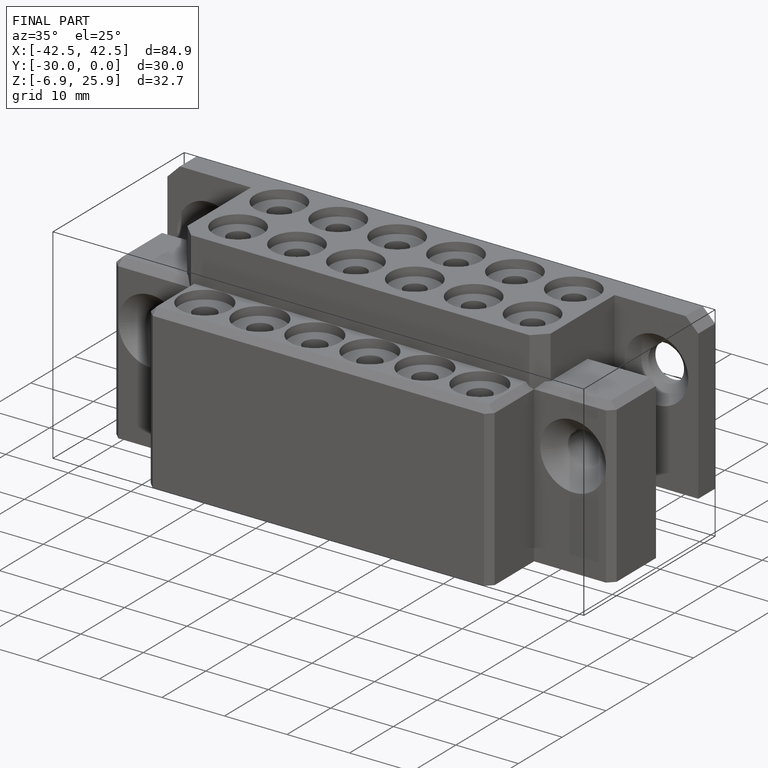
[diagram: finished part — iso view with bounding-box wireframe]
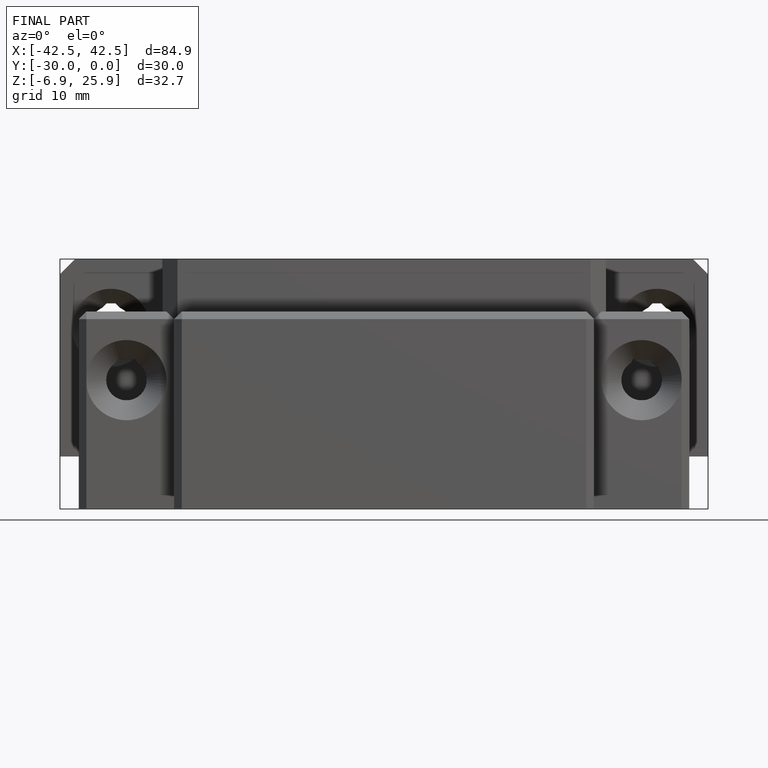
[diagram: finished part — front view with bounding-box wireframe]
